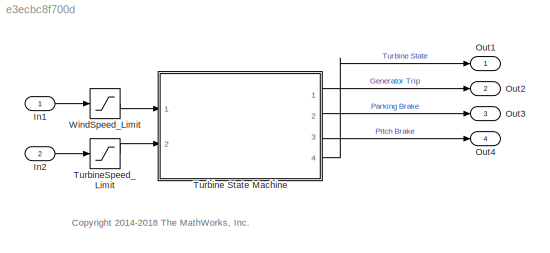
MODEL slx_e3ecbc8f700d
KIND model
CONFIG AbsTol = auto
CONFIG EnableMultiTasking = on
CONFIG FixedStep = 0.001
CONFIG MaxStep = 1e-4
CONFIG MinStep = auto
CONFIG RelTol = 1e-3
CONFIG SampleTimeConstraint = Unconstrained
CONFIG Solver = ode3
CONFIG SolverName = ode3
CONFIG StartTime = 0.0
CONFIG StopTime = 20
BLOCK [Inport] In1
  IconDisplay = Port number
  OutDataTypeStr = double
  PortDimensions = 1
  SampleTime = 0.001
  SamplingMode = Sample based
  SignalType = real
BLOCK [Inport] In2
  IconDisplay = Port number
  OutDataTypeStr = double
  Port = 2
  PortDimensions = 1
  SampleTime = 0.001
  SamplingMode = Sample based
  SignalType = real
BLOCK [Outport] Out1
  IconDisplay = Port number
  OutDataTypeStr = double
  PortDimensions = 1
  SampleTime = [0.001,0]
  SamplingMode = Sample based
  SignalType = real
BLOCK [Outport] Out2
  IconDisplay = Port number
  OutDataTypeStr = double
  Port = 2
  PortDimensions = 1
  SampleTime = [0.001,0]
  SamplingMode = Sample based
  SignalType = real
BLOCK [Outport] Out3
  IconDisplay = Port number
  OutDataTypeStr = double
  Port = 3
  PortDimensions = 1
  SampleTime = [0.001,0]
  SamplingMode = Sample based
  SignalType = real
BLOCK [Outport] Out4
  IconDisplay = Port number
  OutDataTypeStr = double
  Port = 4
  PortDimensions = 1
  SampleTime = [0.001,0]
  SamplingMode = Sample based
  SignalType = real
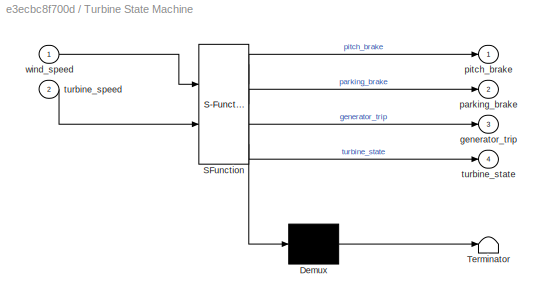
BLOCK [SubSystem] Turbine State Machine
  ErrorFcn = Stateflow.Translate.translate
  PermitHierarchicalResolution = ExplicitOnly
  Ports = [2, 4]
  RequestExecContextInheritance = off
  SFBlockType = Chart
  TreatAsAtomicUnit = on
BLOCK [Demux] Turbine State Machine/ Demux 
  Outputs = 1
  Ports = [1, 1]
BLOCK [S-Function] Turbine State Machine/ SFunction 
  EnableBusSupport = off
  FunctionName = sf_sfun
  PortCounts = [2 5]
  Ports = [2, 5]
  SFcnIsStateOwnerBlock = off
  SFunctionDeploymentMode = off
  Tag = Stateflow S-Function ControlLogic 1
BLOCK [Terminator] Turbine State Machine/ Terminator 
BLOCK [Outport] Turbine State Machine/generator_trip
  IconDisplay = Port number
  Port = 3
BLOCK [Outport] Turbine State Machine/parking_brake
  IconDisplay = Port number
  Port = 2
BLOCK [Outport] Turbine State Machine/pitch_brake
  IconDisplay = Port number
BLOCK [Inport] Turbine State Machine/turbine_speed
  IconDisplay = Port number
  Port = 2
BLOCK [Outport] Turbine State Machine/turbine_state
  IconDisplay = Port number
  Port = 4
BLOCK [Inport] Turbine State Machine/wind_speed
  IconDisplay = Port number
BLOCK [Saturate] TurbineSpeed_Limit
  InputPortMap = u0
  LowerLimit = 0
  Ports = [1, 1]
  UpperLimit = 2500
BLOCK [Saturate] WindSpeed_Limit
  InputPortMap = u0
  LowerLimit = 0
  Ports = [1, 1]
  UpperLimit = 50
ANNOTATION (root): <copyright redacted>
LINE In1:1 -> WindSpeed_Limit:1
LINE In2:1 -> TurbineSpeed_Limit:1
LINE Turbine State Machine:1 -> Out2:1
LINE Turbine State Machine:2 -> Out3:1
LINE Turbine State Machine:3 -> Out4:1
LINE Turbine State Machine:4 -> Out1:1
LINE TurbineSpeed_Limit:1 -> Turbine State Machine:2
LINE WindSpeed_Limit:1 -> Turbine State Machine:1
CHART Turbine State Machine states=6 transitions=10
  STATE_LABEL 'Normal'
  STATE_LABEL 'Generating\nentry: parking_brake = 0;\n          generator_trip = 0;\n          pitch_brake = 0;\n          turbine_state = 2;'
  STATE_LABEL 'Startup\nentry: parking_brake = 0;\n          generator_trip = 1;\n          pitch_brake = 0;\n          turbine_state = 1;'
  STATE_LABEL 'Park\nentry: parking_brake = 1;\n          generator_trip = 1;\n          pitch_brake = 1;\n          turbine_state = 0;'
  STATE_LABEL 'Brake\nentry: parking_brake = 0;\n          generator_trip = 1;\n          pitch_brake = 1;\n          turbine_state = 3;'
  STATE_LABEL '[turbine_speed>...\nturbine_speed_cut_in]'
  STATE_LABEL '[wind_speed>...\nwind_speed_cut_in_lower...\n&&wind_speed<...\nwind_speed_cut_out]'
  STATE_LABEL '[wind_speed<...\nwind_speed_cut_in_lower]'
  STATE_LABEL '[wind_speed<...\nwind_speed_cut_in_upper...\n&& wind_speed>...\nwind_speed_cut_in_lower]'
  STATE_LABEL '[wind_speed<...\nwind_speed_cut_in_lower...\n||wind_speed>...\nwind_speed_cut_out...\n||turbine_speed>...\nturbine_speed_cut_out...\n||turbine_speed<...\nturbine_speed_cut_in*0.9]'
  STATE_LABEL '[turbine_speed<=...\npark_speed]'
  STATE_LABEL 'Generating\nentry: parking_brake = 0;\n          generator_trip = 0;\n          pitch_brake = 0;\n          turbine_state = 2;'
  STATE_LABEL 'Startup\nentry: parking_brake = 0;\n          generator_trip = 1;\n          pitch_brake = 0;\n          turbine_state = 1;'
  STATE_LABEL 'Park\nentry: parking_brake = 1;\n          generator_trip = 1;\n          pitch_brake = 1;\n          turbine_state = 0;'
  STATE_LABEL 'Brake\nentry: parking_brake = 0;\n          generator_trip = 1;\n          pitch_brake = 1;\n          turbine_state = 3;'
  STATE_LABEL 'Danger\nentry: parking_brake = 1;\n          generator_trip = 1;\n          pitch_brake = 1;\n          turbine_state = 4;\n\t    count = uint16(0);\nduring:\ncount = count + uint16(1);\n'
